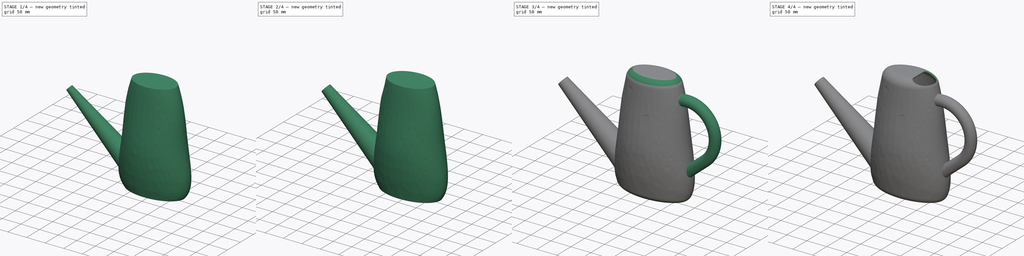
[diagram: build sequence overview — one tinted view per stage of 4, left to right]
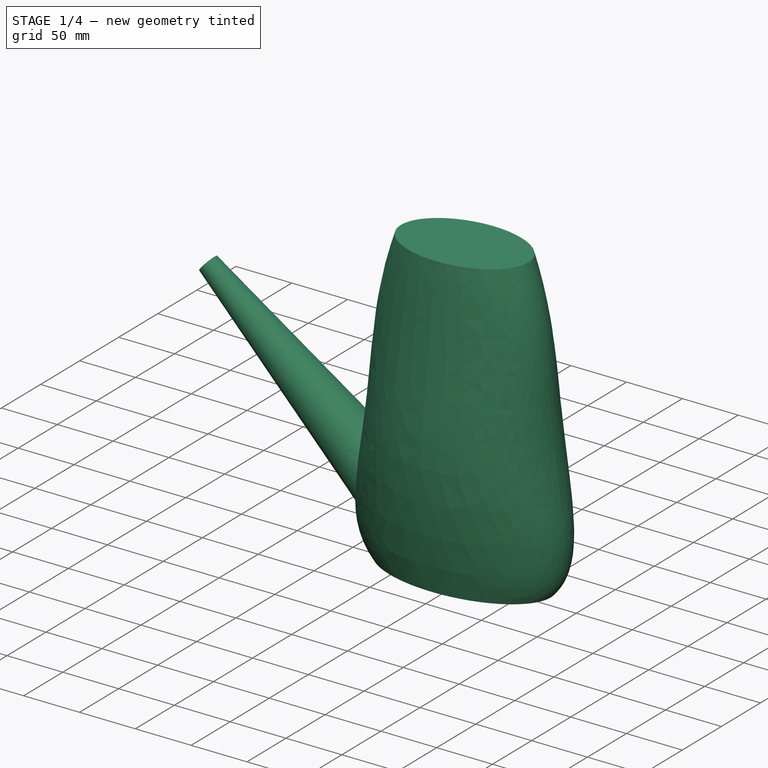
[diagram: stage 1 of 4 — iso view after this stage's code; geometry added in this stage tinted green]
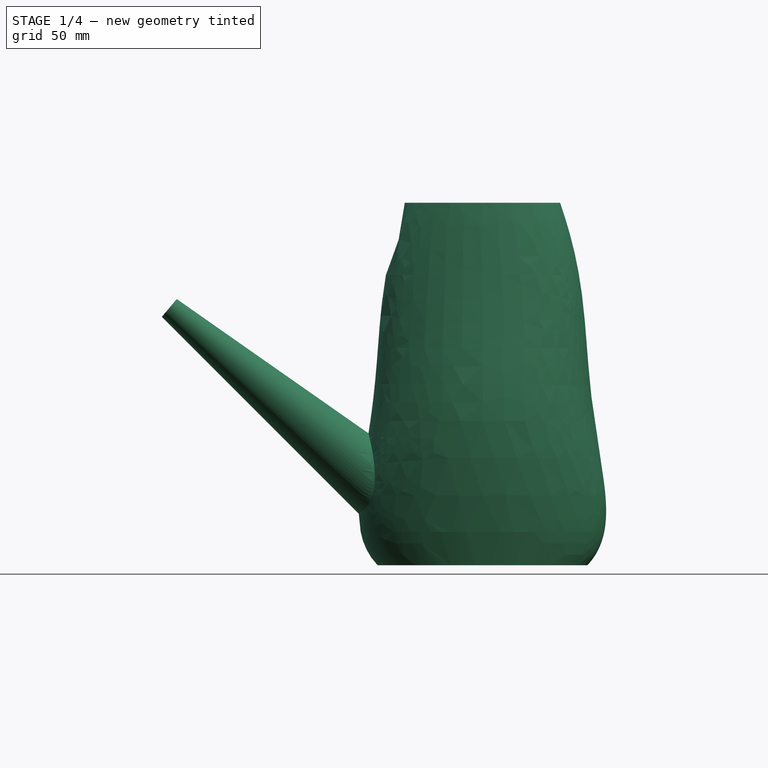
[diagram: stage 1 of 4 — front view after this stage's code; geometry added in this stage tinted green]
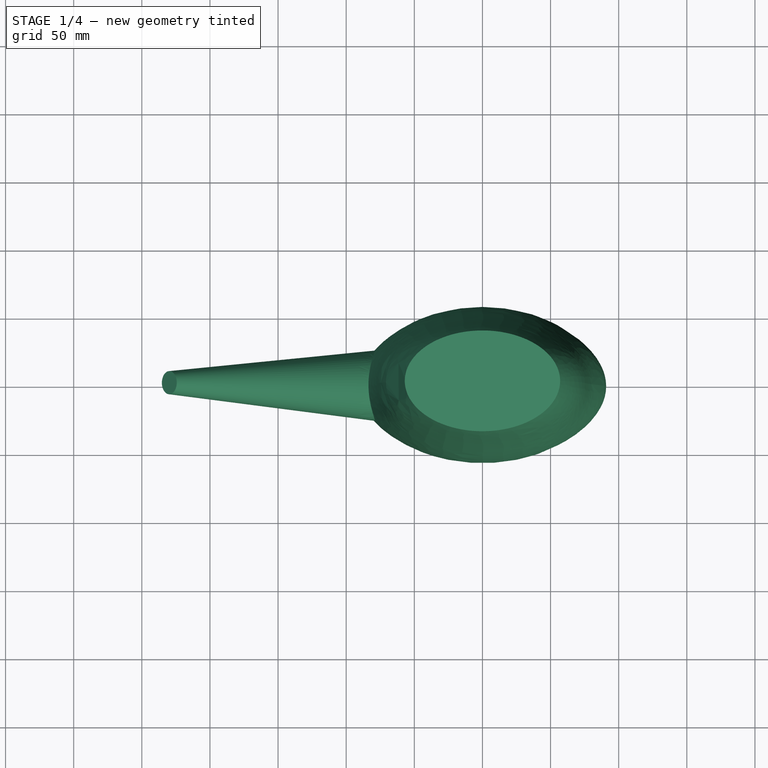
[diagram: stage 1 of 4 — top view after this stage's code; geometry added in this stage tinted green]
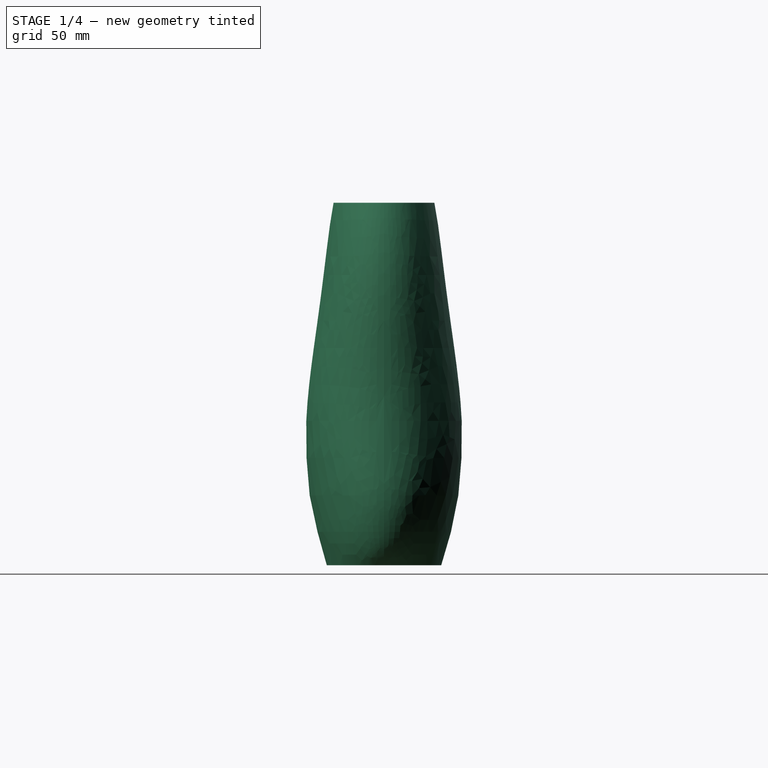
[diagram: stage 1 of 4 — right view after this stage's code; geometry added in this stage tinted green]
FCSTD DOCUMENT  (FreeCAD 1.0R39319 (Git))
Label: Exercise 111 - Pitcher
License: All rights reserved
LicenseURL: https://en.wikipedia.org/wiki/All_rights_reserved
objects: Sketcher::SketchObject×17, PartDesign::Fillet×3, PartDesign::AdditiveLoft×2, PartDesign::Revolution×2, PartDesign::Body×2, PartDesign::Plane×1, PartDesign::AdditivePipe×1, App::VarSet×1, PartDesign::Boolean×1, PartDesign::Pocket×1
note: 66 computed .brp shape members not serialized (recipe doc carries the construction recipe); baked Part::Feature solids carry a one-line shape summary decoded from their .brp

FEATURE [Sketcher::SketchObject] Sketch010  label="Section007"
  ArcFitTolerance = 1e-06
  AttachmentOffset = pos=(0,0,4) rot=(0,0,1;0rad)
  AttachmentSupport = -> [XY_Plane001]
  FullyConstrained = true
  MakeInternals = false
  MapMode = 5
  Placement = pos=(0,0,4) rot=(0,0,1;0rad)
  expr: .AttachmentOffset.Base.z = 0 mm + VarSet.Thickness
  sketch-geometry (5):
    g0: Ellipse CenterX=0 CenterY=0 CenterZ=0 NormalX=0 NormalY=0 NormalZ=1 MajorRadius=77 MinorRadius=42 AngleXU=0
    g1: LineSegment [constr] StartX=77 StartY=0 StartZ=0 EndX=-77 EndY=0 EndZ=0
    g2: LineSegment [constr] StartX=0 StartY=42 StartZ=0 EndX=0 EndY=-42 EndZ=0
    g3: GeomPoint [constr] X=64.5368 Y=0 Z=0
    g4: GeomPoint [constr] X=-64.5368 Y=0 Z=0
  constraints (5):
    c: InternalAlignment(g1-g4 -> g0) x4
    c: Coincident(g0,g-1)
    c: DistanceY(g2,g2) = 84  'H'
    c: DistanceX(g1,g1) = 154  'W'
    c: PointOnObject(g2,g-2)
FEATURE [Sketcher::SketchObject] Sketch011  label="Section008"
  ArcFitTolerance = 1e-06
  AttachmentOffset = pos=(0,0,20) rot=(0,0,1;0rad)
  AttachmentSupport = -> [XY_Plane001]
  FullyConstrained = true
  MakeInternals = false
  MapMode = 5
  Placement = pos=(0,0,20) rot=(0,0,1;0rad)
  sketch-geometry (5):
    g0: Ellipse CenterX=0 CenterY=0 CenterZ=0 NormalX=0 NormalY=0 NormalZ=1 MajorRadius=87 MinorRadius=47 AngleXU=0
    g1: LineSegment [constr] StartX=87 StartY=0 StartZ=0 EndX=-87 EndY=0 EndZ=0
    g2: LineSegment [constr] StartX=0 StartY=47 StartZ=0 EndX=0 EndY=-47 EndZ=0
    g3: GeomPoint [constr] X=73.212 Y=0 Z=0
    g4: GeomPoint [constr] X=-73.212 Y=0 Z=0
  constraints (5):
    c: InternalAlignment(g1-g4 -> g0) x4
    c: Coincident(g0,g-1)
    c: DistanceY(g2,g2) = 94  'H'
    c: DistanceX(g1,g1) = 174  'W'
    c: PointOnObject(g2,g-2)
FEATURE [Sketcher::SketchObject] Sketch012  label="Section009"
  ArcFitTolerance = 1e-06
  AttachmentOffset = pos=(0,0,80) rot=(0,0,1;0rad)
  AttachmentSupport = -> [XY_Plane001]
  FullyConstrained = true
  MakeInternals = false
  MapMode = 5
  Placement = pos=(0,0,80) rot=(0,0,1;0rad)
  sketch-geometry (5):
    g0: Ellipse CenterX=0 CenterY=0 CenterZ=0 NormalX=0 NormalY=0 NormalZ=1 MajorRadius=87 MinorRadius=57 AngleXU=0
    g1: LineSegment [constr] StartX=87 StartY=0 StartZ=0 EndX=-87 EndY=0 EndZ=0
    g2: LineSegment [constr] StartX=0 StartY=57 StartZ=0 EndX=0 EndY=-57 EndZ=0
    g3: GeomPoint [constr] X=65.7267 Y=0 Z=0
    g4: GeomPoint [constr] X=-65.7267 Y=0 Z=0
  constraints (5):
    c: InternalAlignment(g1-g4 -> g0) x4
    c: Coincident(g0,g-1)
    c: DistanceY(g2,g2) = 114  'H'
    c: DistanceX(g1,g1) = 174  'W'
    c: PointOnObject(g2,g-2)
FEATURE [Sketcher::SketchObject] Sketch013  label="Section010"
  ArcFitTolerance = 1e-06
  AttachmentOffset = pos=(0,0,160) rot=(0,0,1;0rad)
  AttachmentSupport = -> [XY_Plane001]
  FullyConstrained = true
  MakeInternals = false
  MapMode = 5
  Placement = pos=(0,0,160) rot=(0,0,1;0rad)
  sketch-geometry (5):
    g0: Ellipse CenterX=0 CenterY=0 CenterZ=0 NormalX=0 NormalY=0 NormalZ=1 MajorRadius=77 MinorRadius=52 AngleXU=0
    g1: LineSegment [constr] StartX=77 StartY=0 StartZ=0 EndX=-77 EndY=0 EndZ=0
    g2: LineSegment [constr] StartX=0 StartY=52 StartZ=0 EndX=0 EndY=-52 EndZ=0
    g3: GeomPoint [constr] X=56.7891 Y=0 Z=0
    g4: GeomPoint [constr] X=-56.7891 Y=0 Z=0
  constraints (5):
    c: InternalAlignment(g1-g4 -> g0) x4
    c: Coincident(g0,g-1)
    c: DistanceY(g2,g2) = 104  'H'
    c: DistanceX(g1,g1) = 154  'W'
    c: PointOnObject(g2,g-2)
FEATURE [Sketcher::SketchObject] Sketch014  label="Section011"
  ArcFitTolerance = 1e-06
  AttachmentOffset = pos=(0,0,270) rot=(0,0,1;0rad)
  AttachmentSupport = -> [XY_Plane001]
  FullyConstrained = true
  MakeInternals = false
  MapMode = 5
  Placement = pos=(0,0,270) rot=(0,0,1;0rad)
  expr: .AttachmentOffset.Base.z = 274 mm - VarSet.Thickness
  sketch-geometry (5):
    g0: Ellipse CenterX=0 CenterY=0 CenterZ=0 NormalX=0 NormalY=0 NormalZ=1 MajorRadius=57 MinorRadius=37 AngleXU=0
    g1: LineSegment [constr] StartX=57 StartY=0 StartZ=0 EndX=-57 EndY=0 EndZ=0
    g2: LineSegment [constr] StartX=0 StartY=37 StartZ=0 EndX=0 EndY=-37 EndZ=0
    g3: GeomPoint [constr] X=43.359 Y=0 Z=0
    g4: GeomPoint [constr] X=-43.359 Y=0 Z=0
  constraints (5):
    c: InternalAlignment(g1-g4 -> g0) x4
    c: Coincident(g0,g-1)
    c: DistanceY(g2,g2) = 74  'H'
    c: DistanceX(g1,g1) = 114  'W'
    c: PointOnObject(g2,g-2)
FEATURE [Sketcher::SketchObject] Sketch015  label="Section012"
  ArcFitTolerance = 1e-06
  AttachmentOffset = pos=(0,0,236) rot=(0,0,1;0rad)
  AttachmentSupport = -> [XY_Plane001]
  FullyConstrained = true
  MakeInternals = false
  MapMode = 5
  Placement = pos=(0,0,236) rot=(0,0,1;0rad)
  sketch-geometry (5):
    g0: Ellipse CenterX=0 CenterY=0 CenterZ=0 NormalX=0 NormalY=0 NormalZ=1 MajorRadius=67 MinorRadius=42 AngleXU=0
    g1: LineSegment [constr] StartX=67 StartY=0 StartZ=0 EndX=-67 EndY=0 EndZ=0
    g2: LineSegment [constr] StartX=0 StartY=42 StartZ=0 EndX=0 EndY=-42 EndZ=0
    g3: GeomPoint [constr] X=52.2015 Y=0 Z=0
    g4: GeomPoint [constr] X=-52.2015 Y=0 Z=0
  constraints (5):
    c: InternalAlignment(g1-g4 -> g0) x4
    c: Coincident(g0,g-1)
    c: DistanceY(g2,g2) = 84  'H'
    c: DistanceX(g1,g1) = 134  'W'
    c: PointOnObject(g2,g-2)
FEATURE [App::VarSet] VarSet
  Thickness = 4
FEATURE [PartDesign::AdditiveLoft] AdditiveLoft001
  Closed = false
  Profile = -> Sketch010
  Refine = true
  Ruled = false
  Sections = -> [Sketch011,Sketch012,Sketch013,Sketch015,Sketch014]
  Suppressed = false
FEATURE [Sketcher::SketchObject] Sketch016
  ArcFitTolerance = 1e-06
  AttachmentSupport = -> [XZ_Plane001]
  FullyConstrained = true
  MakeInternals = false
  MapMode = 5
  Placement = pos=(0,0,0) rot=(1,0,0;1.5708rad)
  expr: Constraints[13] = VarSet.Thickness + 0.25 mm
  expr: Constraints[2] = 12.5 mm - VarSet.Thickness
  sketch-geometry (5):
    g0: LineSegment StartX=-229.813 StartY=192.836 StartZ=0 EndX=-235.277 EndY=186.325 EndZ=0
    g1: LineSegment StartX=-235.277 StartY=186.325 StartZ=0 EndX=-53.2021 EndY=4.25 EndZ=0
    g2: LineSegment [constr] StartX=-229.813 StartY=192.836 StartZ=0 EndX=0 EndY=0 EndZ=0
    g3: LineSegment StartX=-53.2021 StartY=4.25 StartZ=0 EndX=-33.313 EndY=27.9529 EndZ=0
    g4: LineSegment StartX=-33.313 StartY=27.9529 StartZ=0 EndX=-229.813 EndY=192.836 EndZ=0
  constraints (14):
    c: Distance(g-1,g0) = 300
    c: Coincident(g0,g1)
    c: Distance(g0,g0) = 8.5
    c: Coincident(g2,g0)
    c: Coincident(g2,g-1)
    c: Angle(g-2,g2) = 0.872665
    c: Coincident(g1,g3)
    c: PointOnObject(g3,g2)
    c: Coincident(g3,g4)
    c: Coincident(g4,g0)
    c: Angle(g1,g4) = 0.0872665
    c: Perpendicular(g3,g4)
    c: Perpendicular(g4,g0)
    c: DistanceY(g-1,g1) = 4.25
FEATURE [PartDesign::Revolution] Revolution001
  Angle = 360
  Angle2 = 60
  Axis = (229.813,-4.28e-14,-192.836)
  Base = (-229.813,4.28e-14,192.836)
  BaseFeature = -> AdditiveLoft001
  Profile = -> Sketch016
  ReferenceAxis = -> Sketch016 [Axis]
  Refine = true
  Reversed = true
  Suppressed = false
  Type = 0
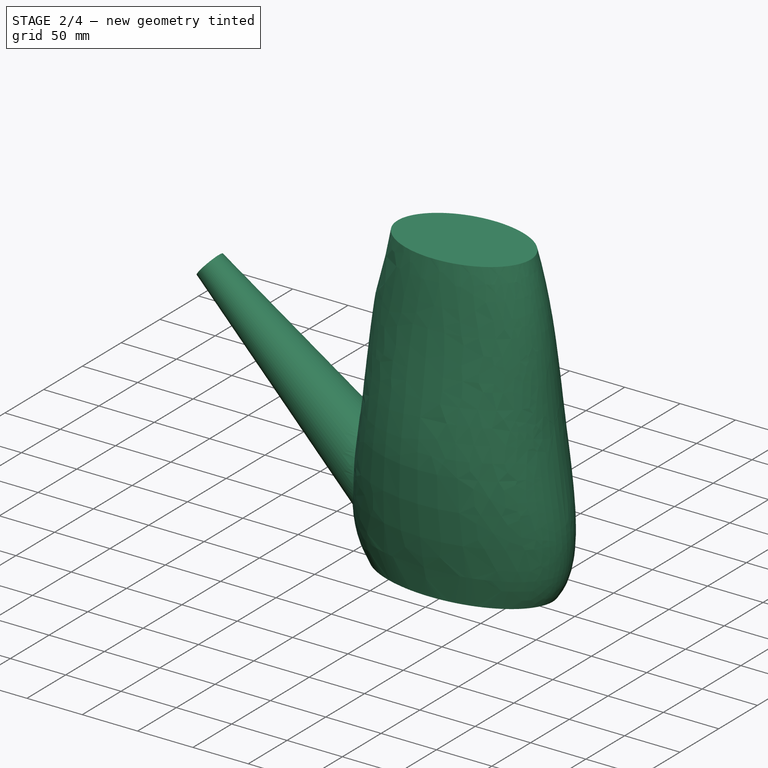
[diagram: stage 2 of 4 — iso view after this stage's code; geometry added in this stage tinted green]
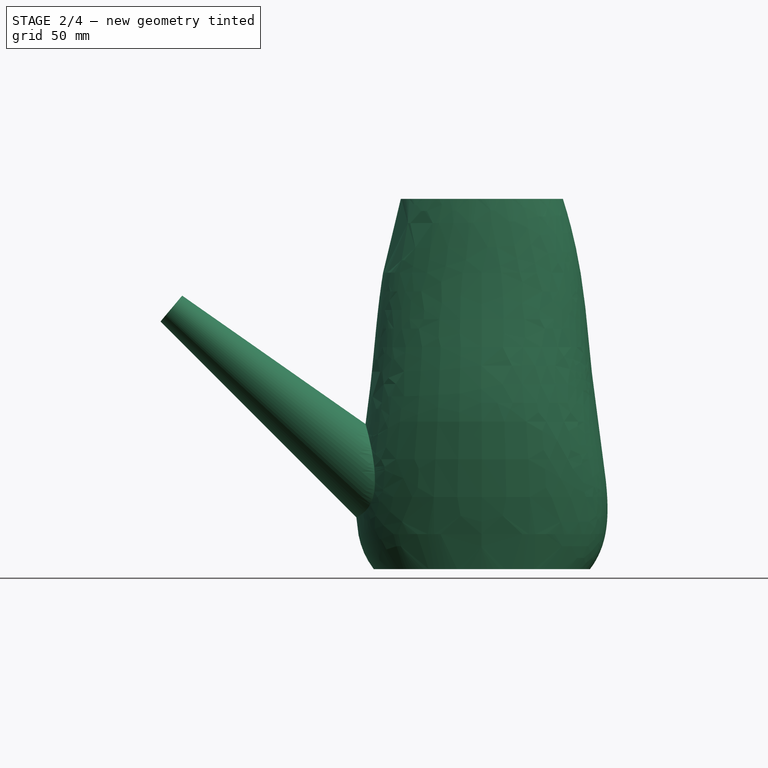
[diagram: stage 2 of 4 — front view after this stage's code; geometry added in this stage tinted green]
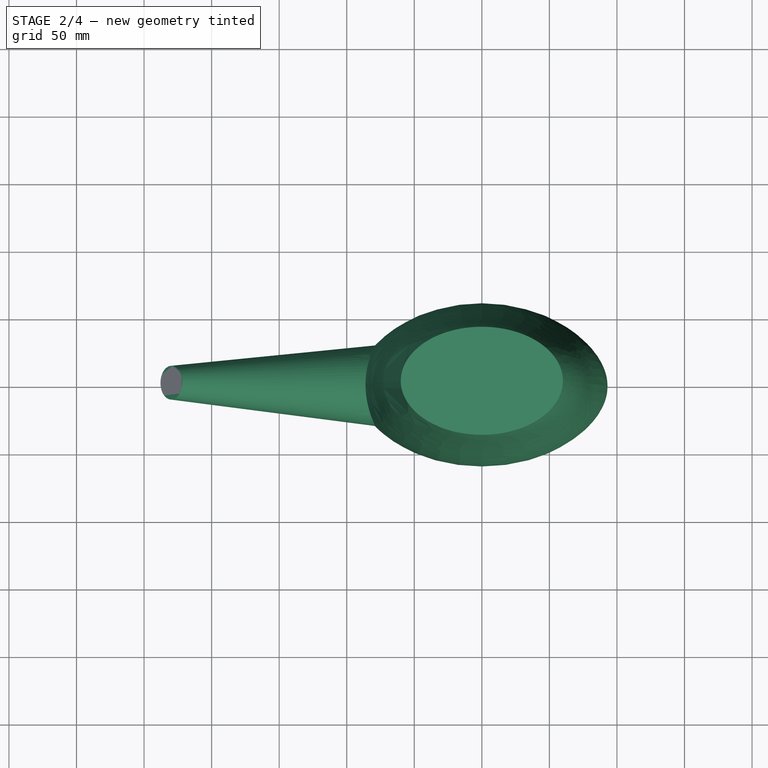
[diagram: stage 2 of 4 — top view after this stage's code; geometry added in this stage tinted green]
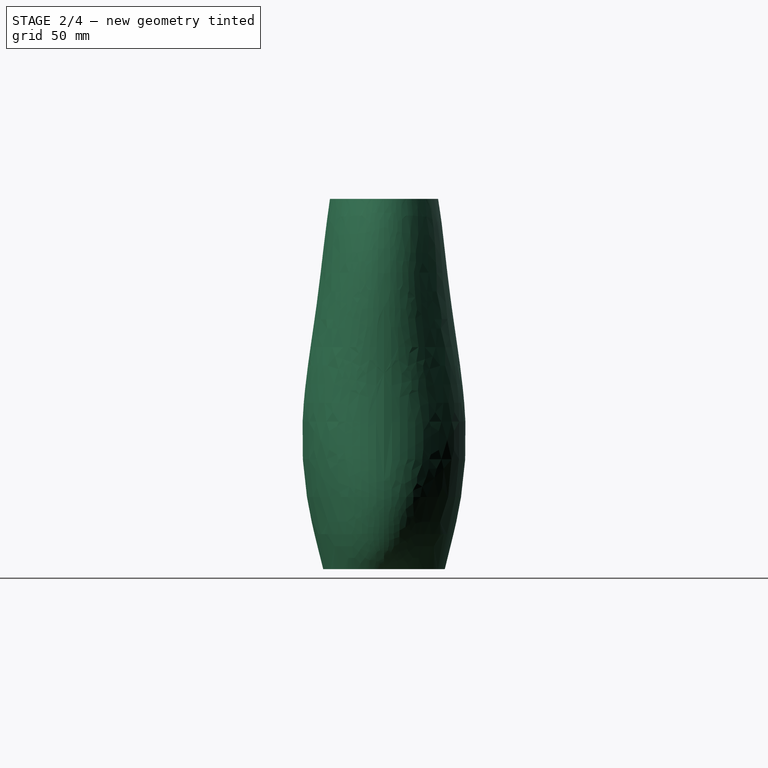
[diagram: stage 2 of 4 — right view after this stage's code; geometry added in this stage tinted green]
FEATURE [Sketcher::SketchObject] Sketch  label="Section1"
  ArcFitTolerance = 1e-06
  AttachmentSupport = -> [XY_Plane]
  FullyConstrained = true
  MakeInternals = false
  MapMode = 5
  sketch-geometry (5):
    g0: Ellipse CenterX=0 CenterY=0 CenterZ=0 NormalX=0 NormalY=0 NormalZ=1 MajorRadius=80 MinorRadius=45 AngleXU=2e-16
    g1: LineSegment [constr] StartX=80 StartY=1.01e-14 StartZ=0 EndX=-80 EndY=-1.01e-14 EndZ=0
    g2: LineSegment [constr] StartX=0 StartY=45 StartZ=0 EndX=0 EndY=-45 EndZ=0
    g3: GeomPoint [constr] X=66.1438 Y=1.22e-14 Z=0
    g4: GeomPoint [constr] X=-66.1438 Y=-1.22e-14 Z=0
  constraints (5):
    c: InternalAlignment(g1-g4 -> g0) x4
    c: Coincident(g0,g-1)
    c: DistanceY(g2,g2) = 90  'H'
    c: DistanceX(g1,g1) = 160  'W'
    c: PointOnObject(g2,g-2)
FEATURE [Sketcher::SketchObject] Sketch001  label="Section2"
  ArcFitTolerance = 1e-06
  AttachmentOffset = pos=(0,0,20) rot=(0,0,1;0rad)
  AttachmentSupport = -> [XY_Plane]
  FullyConstrained = true
  MakeInternals = false
  MapMode = 5
  Placement = pos=(0,0,20) rot=(0,0,1;0rad)
  sketch-geometry (5):
    g0: Ellipse CenterX=0 CenterY=0 CenterZ=0 NormalX=0 NormalY=0 NormalZ=1 MajorRadius=90 MinorRadius=50 AngleXU=0
    g1: LineSegment [constr] StartX=90 StartY=0 StartZ=0 EndX=-90 EndY=0 EndZ=0
    g2: LineSegment [constr] StartX=0 StartY=50 StartZ=0 EndX=0 EndY=-50 EndZ=0
    g3: GeomPoint [constr] X=74.8331 Y=0 Z=0
    g4: GeomPoint [constr] X=-74.8331 Y=0 Z=0
  constraints (5):
    c: InternalAlignment(g1-g4 -> g0) x4
    c: Coincident(g0,g-1)
    c: DistanceY(g2,g2) = 100  'H'
    c: DistanceX(g1,g1) = 180  'W'
    c: PointOnObject(g2,g-2)
FEATURE [Sketcher::SketchObject] Sketch002  label="Section3"
  ArcFitTolerance = 1e-06
  AttachmentOffset = pos=(0,0,80) rot=(0,0,1;0rad)
  AttachmentSupport = -> [XY_Plane]
  FullyConstrained = true
  MakeInternals = false
  MapMode = 5
  Placement = pos=(0,0,80) rot=(0,0,1;0rad)
  sketch-geometry (5):
    g0: Ellipse CenterX=0 CenterY=0 CenterZ=0 NormalX=0 NormalY=0 NormalZ=1 MajorRadius=90 MinorRadius=60 AngleXU=0
    g1: LineSegment [constr] StartX=90 StartY=0 StartZ=0 EndX=-90 EndY=0 EndZ=0
    g2: LineSegment [constr] StartX=0 StartY=60 StartZ=0 EndX=0 EndY=-60 EndZ=0
    g3: GeomPoint [constr] X=67.082 Y=0 Z=0
    g4: GeomPoint [constr] X=-67.082 Y=0 Z=0
  constraints (5):
    c: InternalAlignment(g1-g4 -> g0) x4
    c: Coincident(g0,g-1)
    c: DistanceY(g2,g2) = 120  'H'
    c: DistanceX(g1,g1) = 180  'W'
    c: PointOnObject(g2,g-2)
FEATURE [Sketcher::SketchObject] Sketch003  label="Section4"
  ArcFitTolerance = 1e-06
  AttachmentOffset = pos=(0,0,160) rot=(0,0,1;0rad)
  AttachmentSupport = -> [XY_Plane]
  FullyConstrained = true
  MakeInternals = false
  MapMode = 5
  Placement = pos=(0,0,160) rot=(0,0,1;0rad)
  sketch-geometry (5):
    g0: Ellipse CenterX=0 CenterY=0 CenterZ=0 NormalX=0 NormalY=0 NormalZ=1 MajorRadius=80 MinorRadius=55 AngleXU=0
    g1: LineSegment [constr] StartX=80 StartY=0 StartZ=0 EndX=-80 EndY=0 EndZ=0
    g2: LineSegment [constr] StartX=0 StartY=55 StartZ=0 EndX=0 EndY=-55 EndZ=0
    g3: GeomPoint [constr] X=58.0948 Y=0 Z=0
    g4: GeomPoint [constr] X=-58.0948 Y=0 Z=0
  constraints (5):
    c: InternalAlignment(g1-g4 -> g0) x4
    c: Coincident(g0,g-1)
    c: DistanceY(g2,g2) = 110  'H'
    c: DistanceX(g1,g1) = 160  'W'
    c: PointOnObject(g2,g-2)
FEATURE [Sketcher::SketchObject] Sketch005  label="Section6"
  ArcFitTolerance = 1e-06
  AttachmentOffset = pos=(0,0,274) rot=(0,0,1;0rad)
  AttachmentSupport = -> [XY_Plane]
  FullyConstrained = true
  MakeInternals = false
  MapMode = 5
  Placement = pos=(0,0,274) rot=(0,0,1;0rad)
  sketch-geometry (5):
    g0: Ellipse CenterX=0 CenterY=0 CenterZ=0 NormalX=0 NormalY=0 NormalZ=1 MajorRadius=60 MinorRadius=40 AngleXU=0
    g1: LineSegment [constr] StartX=60 StartY=0 StartZ=0 EndX=-60 EndY=0 EndZ=0
    g2: LineSegment [constr] StartX=0 StartY=40 StartZ=0 EndX=0 EndY=-40 EndZ=0
    g3: GeomPoint [constr] X=44.7214 Y=0 Z=0
    g4: GeomPoint [constr] X=-44.7214 Y=0 Z=0
  constraints (5):
    c: InternalAlignment(g1-g4 -> g0) x4
    c: Coincident(g0,g-1)
    c: DistanceY(g2,g2) = 80  'H'
    c: DistanceX(g1,g1) = 120  'W'
    c: PointOnObject(g2,g-2)
FEATURE [Sketcher::SketchObject] Sketch006  label="Section5"
  ArcFitTolerance = 1e-06
  AttachmentOffset = pos=(0,0,236) rot=(0,0,1;0rad)
  AttachmentSupport = -> [XY_Plane]
  FullyConstrained = true
  MakeInternals = false
  MapMode = 5
  Placement = pos=(0,0,236) rot=(0,0,1;0rad)
  sketch-geometry (5):
    g0: Ellipse CenterX=0 CenterY=0 CenterZ=0 NormalX=0 NormalY=0 NormalZ=1 MajorRadius=70 MinorRadius=45 AngleXU=0
    g1: LineSegment [constr] StartX=70 StartY=0 StartZ=0 EndX=-70 EndY=0 EndZ=0
    g2: LineSegment [constr] StartX=0 StartY=45 StartZ=0 EndX=0 EndY=-45 EndZ=0
    g3: GeomPoint [constr] X=53.619 Y=0 Z=0
    g4: GeomPoint [constr] X=-53.619 Y=0 Z=0
  constraints (5):
    c: InternalAlignment(g1-g4 -> g0) x4
    c: Coincident(g0,g-1)
    c: DistanceY(g2,g2) = 90  'H'
    c: DistanceX(g1,g1) = 140  'W'
    c: PointOnObject(g2,g-2)
FEATURE [PartDesign::AdditiveLoft] AdditiveLoft
  Closed = false
  Profile = -> Sketch
  Refine = true
  Ruled = false
  Sections = -> [Sketch001,Sketch002,Sketch003,Sketch006,Sketch005]
  Suppressed = false
FEATURE [Sketcher::SketchObject] Sketch007
  ArcFitTolerance = 1e-06
  AttachmentSupport = -> [XZ_Plane]
  FullyConstrained = true
  MakeInternals = false
  MapMode = 5
  Placement = pos=(0,0,0) rot=(1,0,0;1.5708rad)
  sketch-geometry (5):
    g0: LineSegment StartX=-229.813 StartY=192.836 StartZ=0 EndX=-237.848 EndY=183.261 EndZ=0
    g1: LineSegment StartX=-237.848 StartY=183.261 StartZ=0 EndX=-54.5875 EndY=0 EndZ=0
    g2: LineSegment [constr] StartX=-229.813 StartY=192.836 StartZ=0 EndX=-2.84e-14 EndY=0 EndZ=0
    g3: LineSegment StartX=-54.5875 StartY=0 StartZ=0 EndX=-32.0332 EndY=26.8791 EndZ=0
    g4: LineSegment StartX=-32.0332 StartY=26.8791 StartZ=0 EndX=-229.813 EndY=192.836 EndZ=0
  constraints (14):
    c: Distance(g-1,g0) = 300
    c: Coincident(g0,g1)
    c: Distance(g0,g0) = 12.5
    c: Coincident(g2,g0)
    c: Coincident(g2,g-1)
    c: Angle(g-2,g2) = 0.872665
    c: Coincident(g1,g3)
    c: PointOnObject(g3,g2)
    c: Coincident(g3,g4)
    c: Coincident(g4,g0)
    c: Angle(g1,g4) = 0.0872665
    c: PointOnObject(g1,g-1)
    c: Perpendicular(g3,g4)
    c: Perpendicular(g4,g0)
FEATURE [PartDesign::Revolution] Revolution
  Angle = 360
  Angle2 = 60
  Axis = (229.813,-4.28e-14,-192.836)
  Base = (-229.813,4.28e-14,192.836)
  BaseFeature = -> AdditiveLoft
  Profile = -> Sketch007
  ReferenceAxis = -> Sketch007 [Axis]
  Refine = true
  Reversed = true
  Suppressed = false
  Type = 0
FEATURE [PartDesign::Fillet] Fillet001
  Base = -> Revolution001 [Edge6,Edge7]
  BaseFeature = -> Revolution001
  Radius = 20
  Refine = true
  SupportTransform = false
  Suppressed = false
  UseAllEdges = false
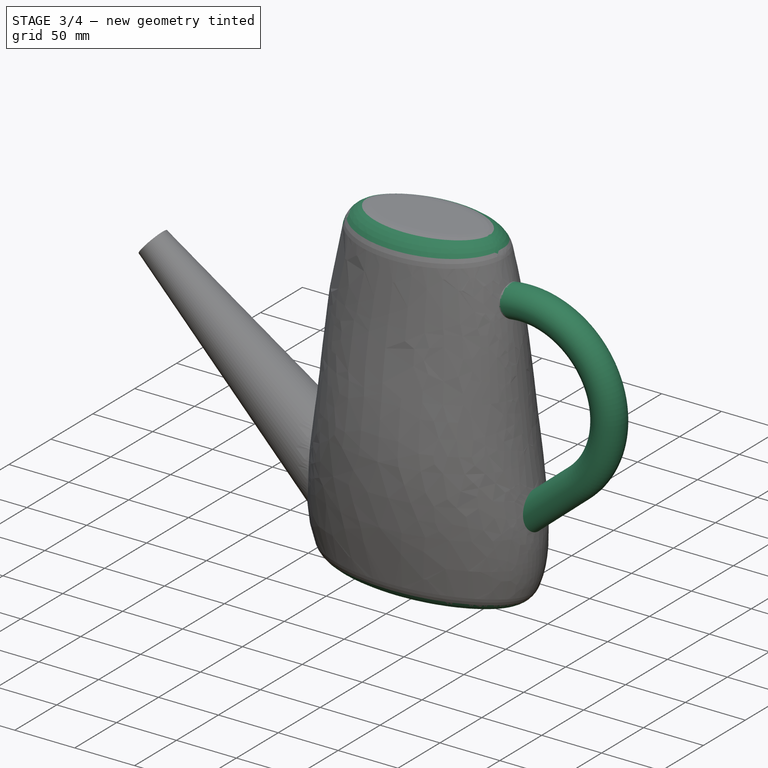
[diagram: stage 3 of 4 — iso view after this stage's code; geometry added in this stage tinted green]
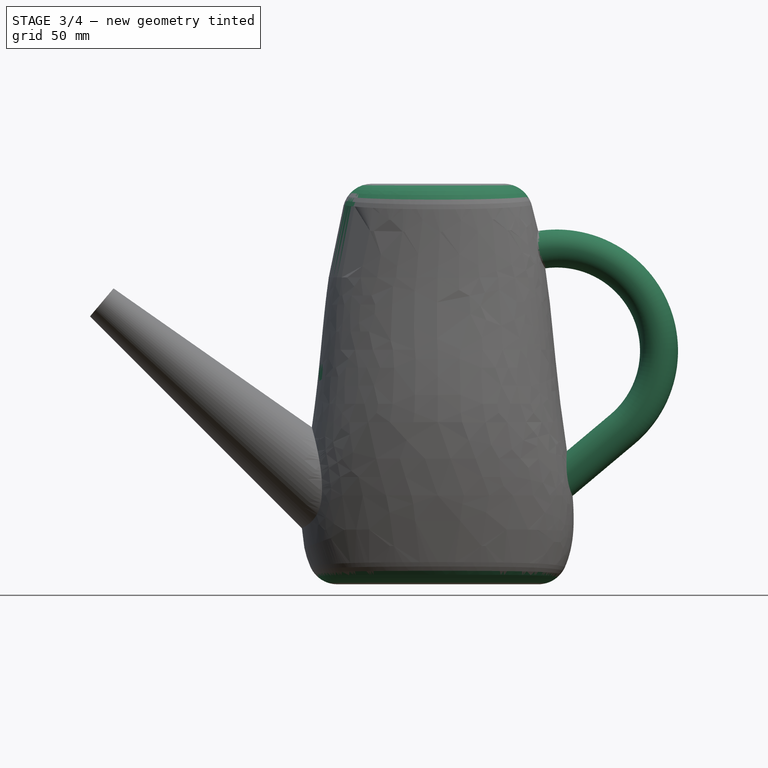
[diagram: stage 3 of 4 — front view after this stage's code; geometry added in this stage tinted green]
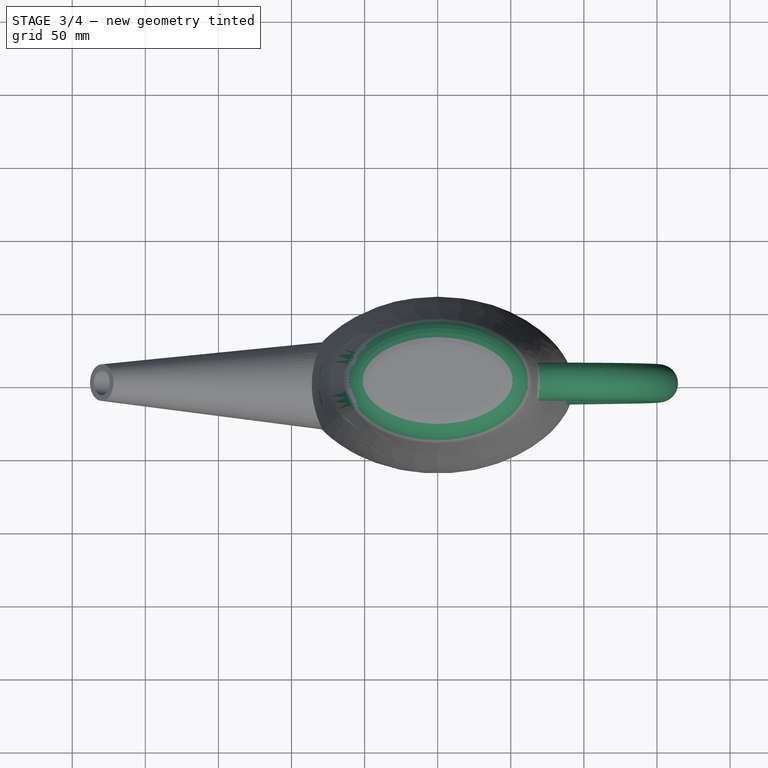
[diagram: stage 3 of 4 — top view after this stage's code; geometry added in this stage tinted green]
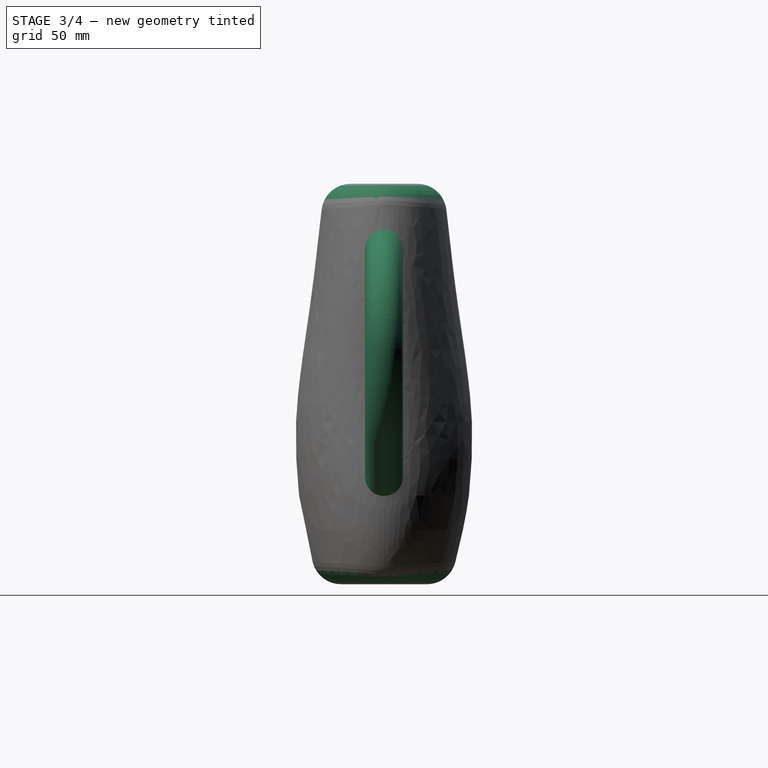
[diagram: stage 3 of 4 — right view after this stage's code; geometry added in this stage tinted green]
FEATURE [Sketcher::SketchObject] Sketch008
  ArcFitTolerance = 1e-06
  AttachmentSupport = -> [XZ_Plane]
  FullyConstrained = true
  MakeInternals = false
  MapMode = 5
  Placement = pos=(0,0,0) rot=(1,0,0;1.5708rad)
  sketch-geometry (3):
    g0: LineSegment [constr] StartX=0 StartY=0 StartZ=0 EndX=78.1365 EndY=65.5643 EndZ=0
    g1: LineSegment StartX=78.1365 StartY=65.5643 StartZ=0 EndX=126.397 EndY=106.06 EndZ=0
    g2: ArcOfCircle CenterX=81.4022 CenterY=159.683 CenterZ=0 NormalX=0 NormalY=0 NormalZ=1 AngleXU=0 Radius=70 StartAngle=5.41052 EndAngle=8.12
  constraints (9):
    c: Coincident(g0,g-1)
    c: Coincident(g1,g0)
    c: Tangent(g2,g1) = -1.5708
    c: Parallel(g1,g0)
    c: Angle(g1,g-2) = 0.872665
    c: Radius(g2) = 70
    c: Distance(g1,g-1) = 165
    c: Distance(g2,g-2) = 63
    c: Distance(g1,g1) = 63
FEATURE [PartDesign::Plane] DatumPlane
  AttachmentSupport = -> [Sketch008]
  Length = 169.477
  MapMode = 7
  Placement = pos=(78.1365,1.46e-14,65.5643) rot=(0.671543,-0.671543,-0.313146;2.53465rad)
  ResizeMode = 0
  Width = 535.456
FEATURE [Sketcher::SketchObject] Sketch009
  ArcFitTolerance = 1e-06
  AttachmentSupport = -> [DatumPlane]
  FullyConstrained = true
  MakeInternals = false
  MapMode = 5
  Placement = pos=(78.1365,1.46e-14,65.5643) rot=(0.671543,-0.671543,-0.313146;2.53465rad)
  sketch-geometry (1):
    g0: Circle CenterX=0 CenterY=0 CenterZ=0 NormalX=0 NormalY=0 NormalZ=1 AngleXU=0 Radius=13
  constraints (2):
    c: Diameter(g0) = 26
    c: Coincident(g0,g-1)
FEATURE [PartDesign::AdditivePipe] AdditivePipe
  AuxilleryCurvelinear = true
  AuxillerySpineTangent = false
  BaseFeature = -> Revolution
  Binormal = (0,0,0)
  Mode = 0
  Profile = -> Sketch009
  Refine = true
  Spine = -> Sketch008
  SpineTangent = false
  Suppressed = false
  Transformation = 0
  Transition = 0
FEATURE [PartDesign::Fillet] Fillet
  Base = -> AdditivePipe [Edge11,Edge5]
  BaseFeature = -> AdditivePipe
  Radius = 20
  Refine = true
  SupportTransform = false
  Suppressed = false
  UseAllEdges = false
FEATURE [PartDesign::Body] Body001  label="SubBody"
  AllowCompound = false
  Group = -> [Sketch010,Sketch011,Sketch012,Sketch013,Sketch014,Sketch015,AdditiveLoft001,Sketch016,Revolution001,Fillet001]
  Origin = -> Origin001
  Tip = -> Fillet001
FEATURE [PartDesign::Boolean] Boolean  label="CutSubBody"
  BaseFeature = -> Fillet
  Group = -> [Body001]
  Refine = true
  Suppressed = false
  Type = 1
  UsePlacement = true
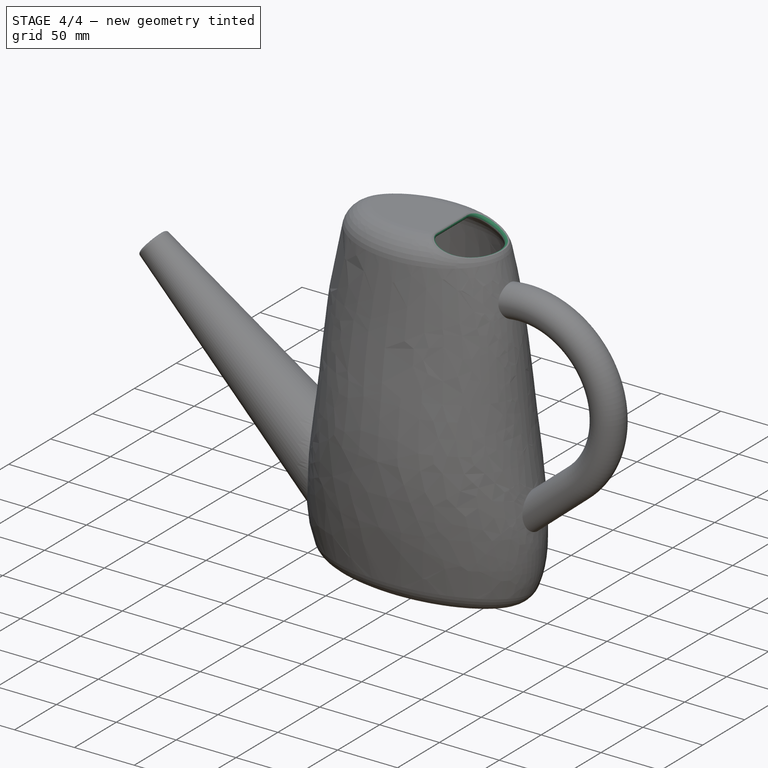
[diagram: stage 4 of 4 — iso view after this stage's code; geometry added in this stage tinted green]
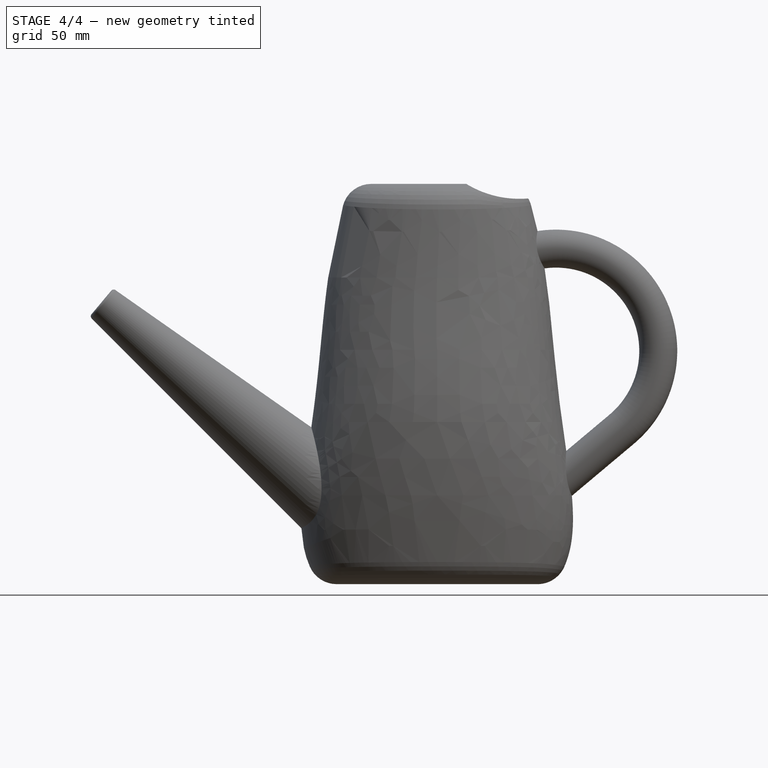
[diagram: stage 4 of 4 — front view after this stage's code; geometry added in this stage tinted green]
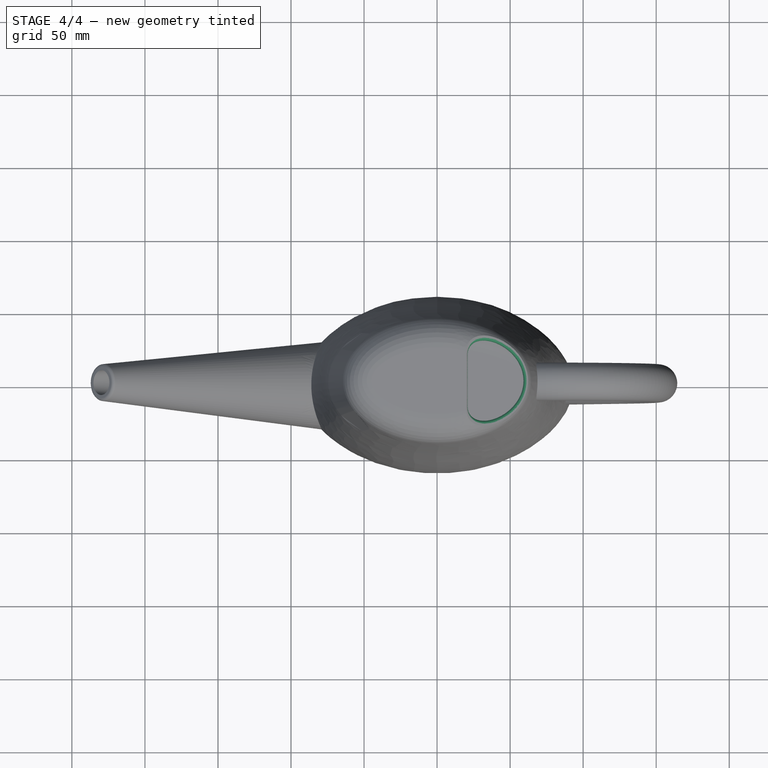
[diagram: stage 4 of 4 — top view after this stage's code; geometry added in this stage tinted green]
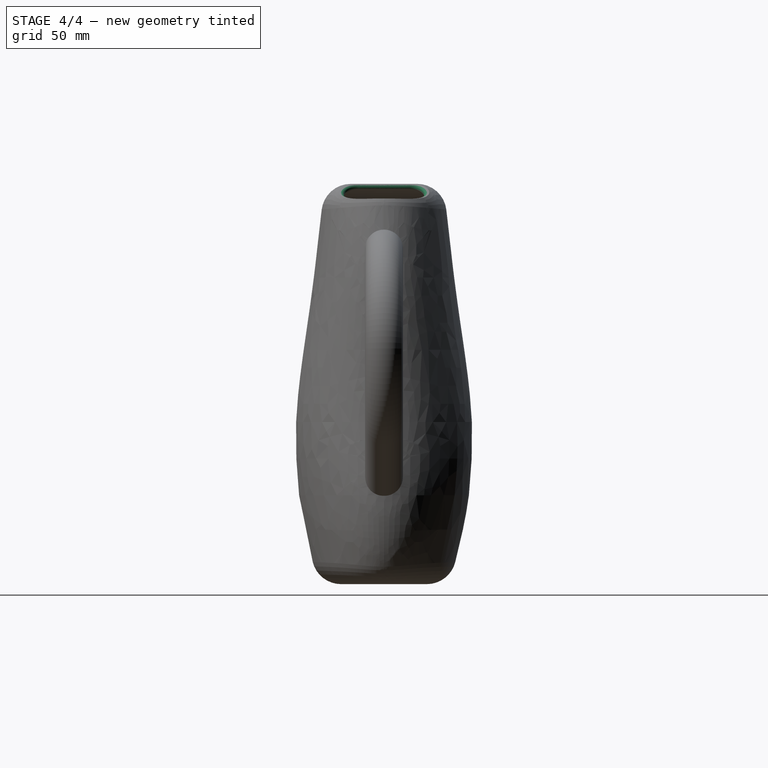
[diagram: stage 4 of 4 — right view after this stage's code; geometry added in this stage tinted green]
FEATURE [Sketcher::SketchObject] Sketch017
  ArcFitTolerance = 1e-06
  AttachmentSupport = -> [XZ_Plane]
  FullyConstrained = true
  MakeInternals = false
  MapMode = 5
  Placement = pos=(0,0,0) rot=(1,0,0;1.5708rad)
  sketch-geometry (5):
    g0: ArcOfCircle CenterX=56.4232 CenterY=333.777 CenterZ=0 NormalX=0 NormalY=0 NormalZ=1 AngleXU=0 Radius=70 StartAngle=4.16515 EndAngle=4.79214
    g1: LineSegment StartX=20 StartY=274 StartZ=0 EndX=20 EndY=304 EndZ=0
    g2: LineSegment StartX=20 StartY=304 StartZ=0 EndX=72 EndY=304 EndZ=0
    g3: LineSegment StartX=62 StartY=264 StartZ=0 EndX=72 EndY=264.799 EndZ=0
    g4: LineSegment StartX=72 StartY=264.799 StartZ=0 EndX=72 EndY=304 EndZ=0
  constraints (15):
    c: Radius(g0) = 70
    c: DistanceX(g-1,g0) = 20
    c: DistanceX(g0,g0) = 42
    c: DistanceY(g0,g0) = 10
    c: DistanceY(g-1,g0) = 274
    c: Coincident(g0,g1)
    c: Vertical(g1)
    c: Coincident(g1,g2)
    c: Horizontal(g2)
    c: DistanceY(g1,g1) = 30
    c: Coincident(g3,g4)
    c: Vertical(g4)
    c: Tangent(g0,g3) = -1.5708
    c: Coincident(g2,g4)
    c: DistanceX(g3,g3) = 10
FEATURE [PartDesign::Pocket] Pocket
  BaseFeature = -> Boolean
  Direction = (0,1,-2e-16)
  Length = 5
  Length2 = 5
  Midplane = true
  Profile = -> Sketch017
  ReferenceAxis = -> Sketch017 [N_Axis]
  Refine = true
  Suppressed = false
  Type = 1
FEATURE [PartDesign::Fillet] Fillet002
  Base = -> Pocket [Edge30,Edge31,Edge26]
  BaseFeature = -> Pocket
  Radius = 2.2
  Refine = true
  SupportTransform = false
  Suppressed = false
  UseAllEdges = false
FEATURE [PartDesign::Body] Body
  AllowCompound = false
  Group = -> [Sketch,Sketch001,Sketch002,Sketch003,Sketch006,Sketch005,AdditiveLoft,Sketch007,Revolution,Sketch008,DatumPlane,Sketch009,AdditivePipe,Fillet,Boolean,Sketch017,Pocket,Fillet002]
  Origin = -> Origin
  Tip = -> Fillet002
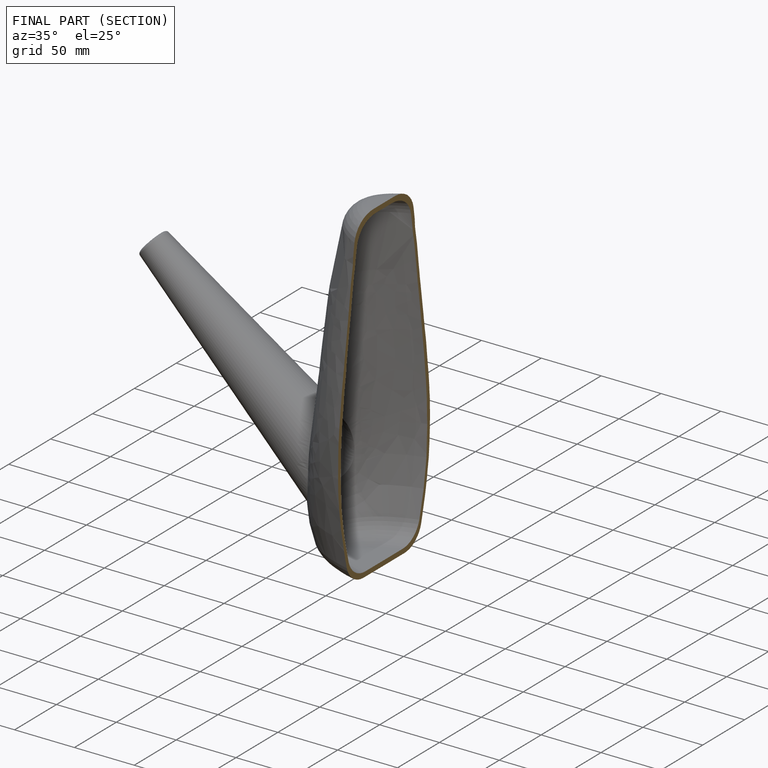
[diagram: finished part — half-section view (interior)]
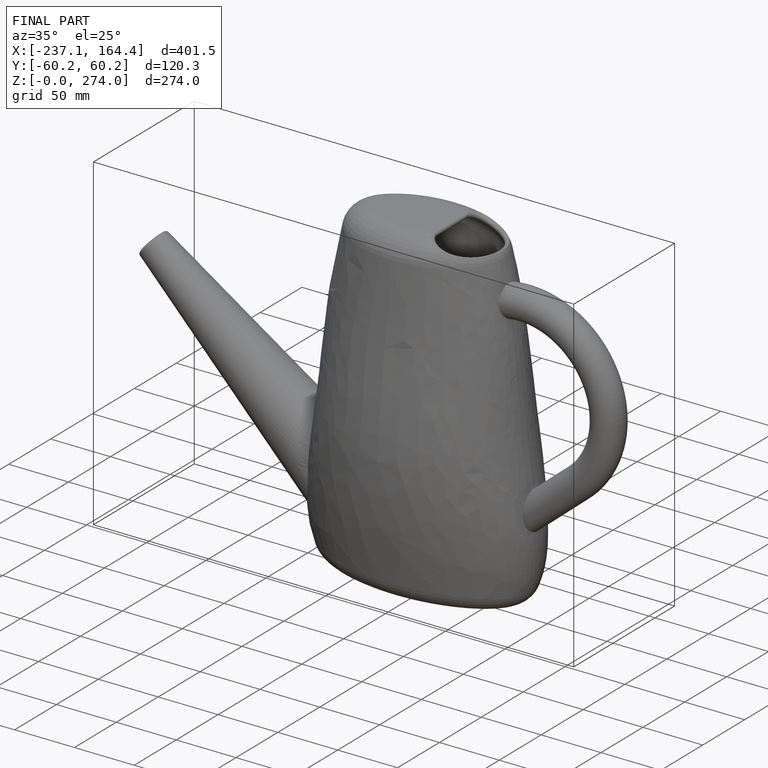
[diagram: finished part — iso view with bounding-box wireframe]
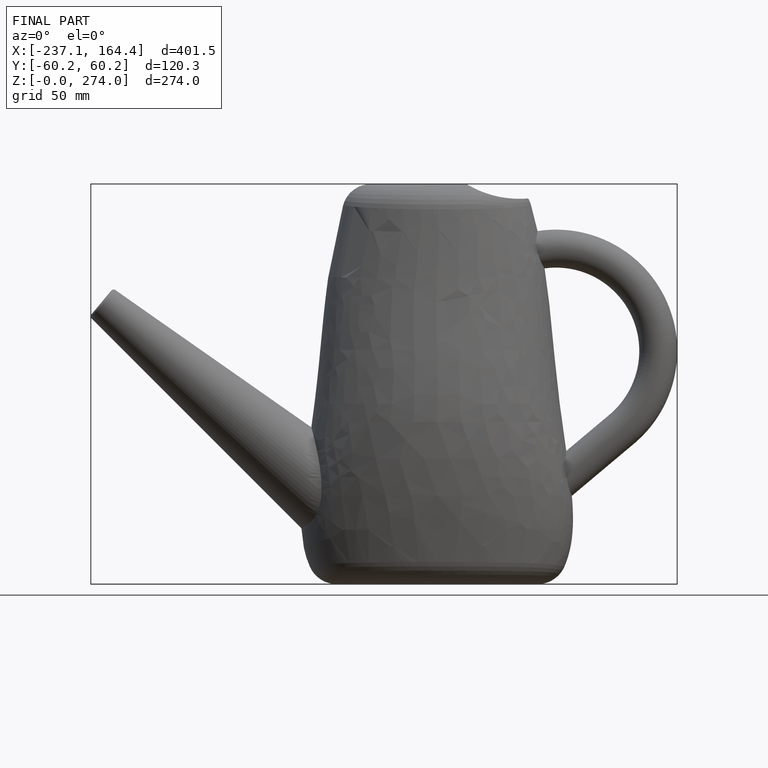
[diagram: finished part — front view with bounding-box wireframe]
